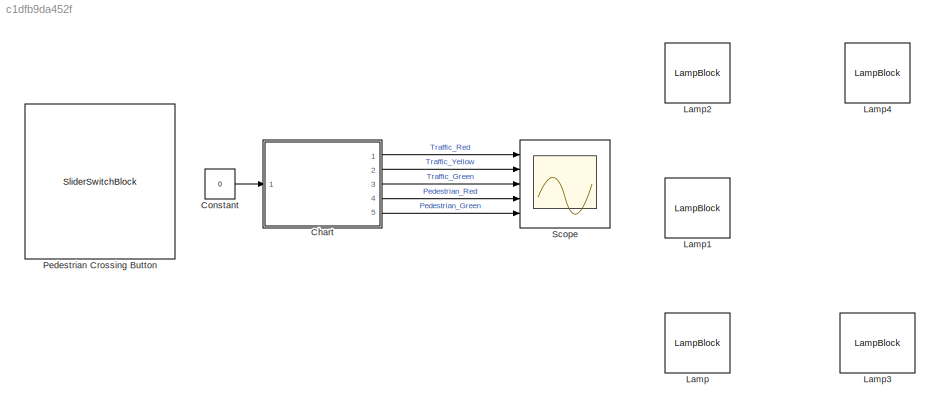
MODEL slx_c1dfb9da452f
KIND model
CONFIG AbsTol = auto
CONFIG EnableMultiTasking = on
CONFIG FixedStep = auto
CONFIG MaxStep = auto
CONFIG MinStep = auto
CONFIG RelTol = 1e-3
CONFIG SampleTimeConstraint = Unconstrained
CONFIG Solver = FixedStepAuto
CONFIG SolverName = FixedStepAuto
CONFIG StartTime = 0.0
CONFIG StopTime = 50
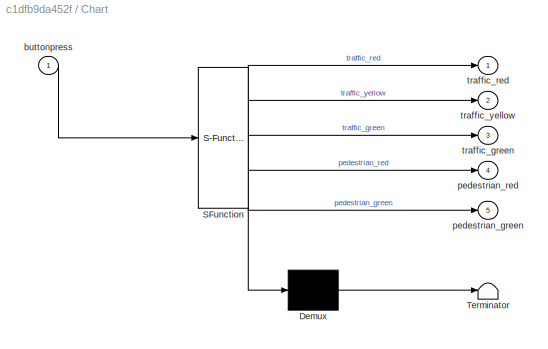
BLOCK [SubSystem] Chart
  ErrorFcn = Stateflow.Translate.translate
  PermitHierarchicalResolution = ExplicitOnly
  Ports = [1, 5]
  RequestExecContextInheritance = off
  SFBlockType = Chart
  TreatAsAtomicUnit = on
BLOCK [Demux] Chart/ Demux 
  Outputs = 1
  Ports = [1, 1]
BLOCK [S-Function] Chart/ SFunction 
  EnableBusSupport = on
  FunctionName = sf_sfun
  PortCounts = [1 6]
  Ports = [1, 6]
  SFcnIsStateOwnerBlock = off
  SFunctionDeploymentMode = off
  Tag = Stateflow S-Function 3
BLOCK [Terminator] Chart/ Terminator 
BLOCK [Inport] Chart/buttonpress
BLOCK [Outport] Chart/pedestrian_green
  Port = 5
BLOCK [Outport] Chart/pedestrian_red
  Port = 4
BLOCK [Outport] Chart/traffic_green
  Port = 3
BLOCK [Outport] Chart/traffic_red
BLOCK [Outport] Chart/traffic_yellow
  Port = 2
BLOCK [Constant] Constant
  Value = 0
BLOCK [LampBlock] Lamp
BLOCK [LampBlock] Lamp1
BLOCK [LampBlock] Lamp2
BLOCK [LampBlock] Lamp3
BLOCK [LampBlock] Lamp4
BLOCK [SliderSwitchBlock] Pedestrian Crossing Button
BLOCK [Scope] Scope
  Floating = off
  NumInputPorts = 5
  Ports = [5]
  ScopeSpecificationString = Simulink.scopes.TimeScopeBlockCfg('CurrentConfiguration', extmgr.ConfigurationSet(extmgr.Configuration('Core','General UI',true),extmgr.Configuration('Core','Source UI',true),extmgr.Configuration('Sources','WiredSimulink',true),extmgr.Configuration('Visuals','Time Domain',true,'SerializedDisplays',{struct('MinYLimReal','-0.125','MaxYLimReal','1.125','YLabelReal','','MinYLimMag','0.00000','MaxYLimM...<+4752ch>
LINE Chart:1 -> Scope:1
LINE Chart:2 -> Scope:2
LINE Chart:3 -> Scope:3
LINE Chart:4 -> Scope:4
LINE Chart:5 -> Scope:5
LINE Constant:1 -> Chart:1
CHART Chart states=3 transitions=4
  STATE_LABEL 'STATE1\nentry: traffic_red = 0;\nentry: traffic_yellow = 0;\nentry: traffic_green = 1;\nentry: pedestrian_red = 1;\nentry: pedestrian_green = 0;\n'
  STATE_LABEL 'STATE2\nentry: traffic_red = 0;\nentry: traffic_yellow = 1;\nentry: traffic_green = 0;\nentry: pedestrian_red = 1;\nentry: pedestrian_green = 0;\n'
  STATE_LABEL 'STATE3\nentry: traffic_red = 1;\nentry: traffic_yellow = 0;\nentry: traffic_green = 0;\nentry: pedestrian_red = 0;\nentry: pedestrian_green = 1;\n'
CHART  states=0 transitions=0
